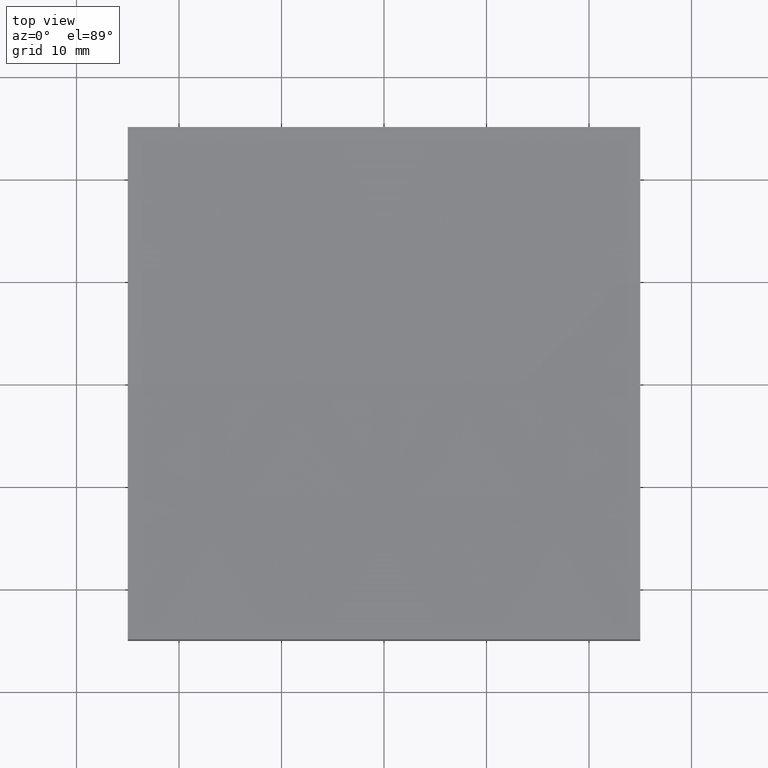
[diagram: clean part render]
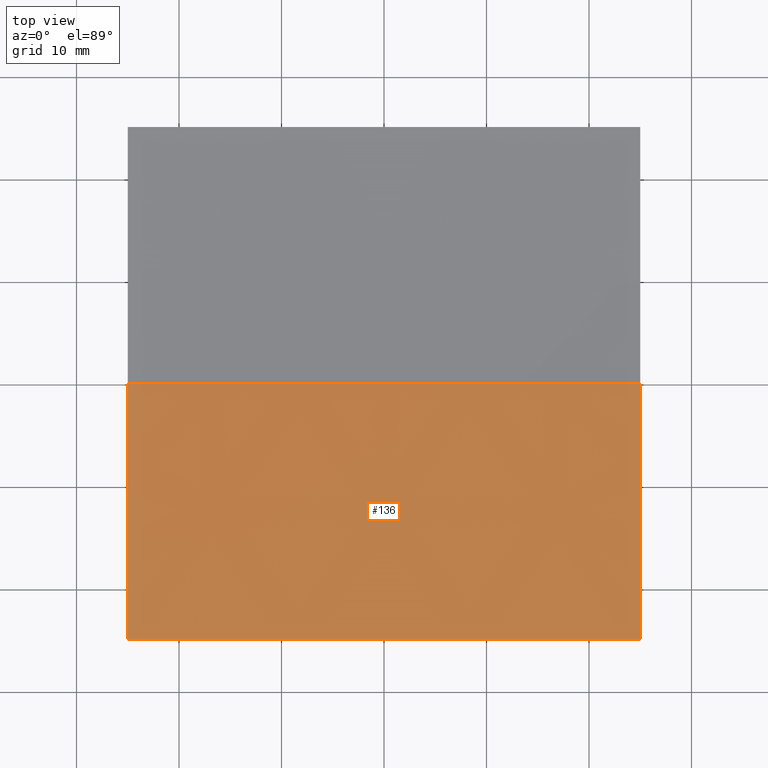
[diagram: same view with one face highlighted and labeled with its STEP entity id]
A machine part, top view. The second image highlights one B-rep face of the part: STEP entity #136.
In plain terms, the highlighted spherical surface has radius 1000 mm.
Its self-contained STEP definition (entity closure, byte-faithful):
#10 = CARTESIAN_POINT ( 'NONE',  ( -25.00000000000000355, 3.061616997868389748E-15, 9.312548843389723885 ) ) ;
#11 = EDGE_CURVE ( 'NONE', #220, #94, #45, .T. ) ;
#13 = VERTEX_POINT ( 'NONE', #21 ) ;
#20 = EDGE_CURVE ( 'NONE', #151, #77, #248, .T. ) ;
#21 = CARTESIAN_POINT ( 'NONE',  ( 1.115058713056187768E-13, 0.0000000000000000000, 9.000000000000007105 ) ) ;
#23 = EDGE_LOOP ( 'NONE', ( #213, #141, #173, #97, #63 ) ) ;
#30 = CARTESIAN_POINT ( 'NONE',  ( 24.99999999999999645, 9.629649721936179265E-32, 9.312548843389723885 ) ) ;
#33 = CARTESIAN_POINT ( 'NONE',  ( -25.00000000000000000, -25.00000000000000711, 9.625195434665666738 ) ) ;
#45 = CIRCLE ( 'NONE', #160, 999.6874511566102228 ) ;
#47 = DIRECTION ( 'NONE',  ( -1.000000000000000000, 1.224646799147353207E-16, 0.0000000000000000000 ) ) ;
#48 = DIRECTION ( 'NONE',  ( 0.0000000000000000000, 0.0000000000000000000, 1.000000000000000000 ) ) ;
#59 = AXIS2_PLACEMENT_3D ( 'NONE', #178, #222, #99 ) ;
#63 = ORIENTED_EDGE ( 'NONE', *, *, #11, .T. ) ;
#65 = CARTESIAN_POINT ( 'NONE',  ( 1.235668620339679159E-13, 0.0000000000000000000, 1008.999999999999886 ) ) ;
#67 = EDGE_CURVE ( 'NONE', #13, #77, #224, .T. ) ;
#72 = SPHERICAL_SURFACE ( 'NONE', #88, 999.9999999999998863 ) ;
#77 = VERTEX_POINT ( 'NONE', #10 ) ;
#88 = AXIS2_PLACEMENT_3D ( 'NONE', #137, #119, #251 ) ;
#91 = CIRCLE ( 'NONE', #169, 999.6874511566101091 ) ;
#94 = VERTEX_POINT ( 'NONE', #30 ) ;
#95 = DIRECTION ( 'NONE',  ( -6.941063325221421144E-17, 1.000000000000000000, 0.0000000000000000000 ) ) ;
#97 = ORIENTED_EDGE ( 'NONE', *, *, #199, .F. ) ;
#99 = DIRECTION ( 'NONE',  ( -6.941063325221421144E-17, 1.000000000000000000, 0.0000000000000000000 ) ) ;
#100 = FACE_OUTER_BOUND ( 'NONE', #23, .T. ) ;
#101 = DIRECTION ( 'NONE',  ( 0.0000000000000000000, 0.0000000000000000000, -1.000000000000000000 ) ) ;
#115 = CARTESIAN_POINT ( 'NONE',  ( 24.99999999999999645, 1.734723475976798220E-15, 1008.999999999999886 ) ) ;
#119 = DIRECTION ( 'NONE',  ( -0.0000000000000000000, 1.000000000000000000, 0.0000000000000000000 ) ) ;
#125 = EDGE_CURVE ( 'NONE', #13, #94, #187, .T. ) ;
#136 = ADVANCED_FACE ( 'NONE', ( #100 ), #72, .F. ) ;
#137 = CARTESIAN_POINT ( 'NONE',  ( 1.235668620339679159E-13, 0.0000000000000000000, 1008.999999999999886 ) ) ;
#140 = CARTESIAN_POINT ( 'NONE',  ( 1.235668620339679159E-13, -25.00000000000000711, 1008.999999999999886 ) ) ;
#141 = ORIENTED_EDGE ( 'NONE', *, *, #67, .T. ) ;
#151 = VERTEX_POINT ( 'NONE', #33 ) ;
#160 = AXIS2_PLACEMENT_3D ( 'NONE', #115, #200, #95 ) ;
#169 = AXIS2_PLACEMENT_3D ( 'NONE', #140, #229, #48 ) ;
#173 = ORIENTED_EDGE ( 'NONE', *, *, #20, .F. ) ;
#178 = CARTESIAN_POINT ( 'NONE',  ( -25.00000000000000355, -1.734723475976815969E-15, 1008.999999999999886 ) ) ;
#184 = DIRECTION ( 'NONE',  ( 0.0000000000000000000, -1.000000000000000000, -0.0000000000000000000 ) ) ;
#187 = CIRCLE ( 'NONE', #208, 999.9999999999998863 ) ;
#199 = EDGE_CURVE ( 'NONE', #220, #151, #91, .T. ) ;
#200 = DIRECTION ( 'NONE',  ( 1.000000000000000000, 6.938893903907228378E-17, -0.0000000000000000000 ) ) ;
#207 = CARTESIAN_POINT ( 'NONE',  ( 1.235668620339679159E-13, 0.0000000000000000000, 1008.999999999999886 ) ) ;
#208 = AXIS2_PLACEMENT_3D ( 'NONE', #207, #184, #101 ) ;
#213 = ORIENTED_EDGE ( 'NONE', *, *, #125, .F. ) ;
#218 = CARTESIAN_POINT ( 'NONE',  ( 25.00000000000000000, -25.00000000000000711, 9.625195434665666738 ) ) ;
#220 = VERTEX_POINT ( 'NONE', #218 ) ;
#222 = DIRECTION ( 'NONE',  ( 1.000000000000000000, 6.938893903907228378E-17, -0.0000000000000000000 ) ) ;
#224 = CIRCLE ( 'NONE', #246, 999.9999999999998863 ) ;
#229 = DIRECTION ( 'NONE',  ( 0.0000000000000000000, 1.000000000000000000, 0.0000000000000000000 ) ) ;
#242 = DIRECTION ( 'NONE',  ( 1.224646799147353207E-16, 1.000000000000000000, -8.975844282311158940E-33 ) ) ;
#246 = AXIS2_PLACEMENT_3D ( 'NONE', #65, #242, #47 ) ;
#248 = CIRCLE ( 'NONE', #59, 999.6874511566102228 ) ;
#251 = DIRECTION ( 'NONE',  ( 1.000000000000000000, 0.0000000000000000000, 0.0000000000000000000 ) ) ;